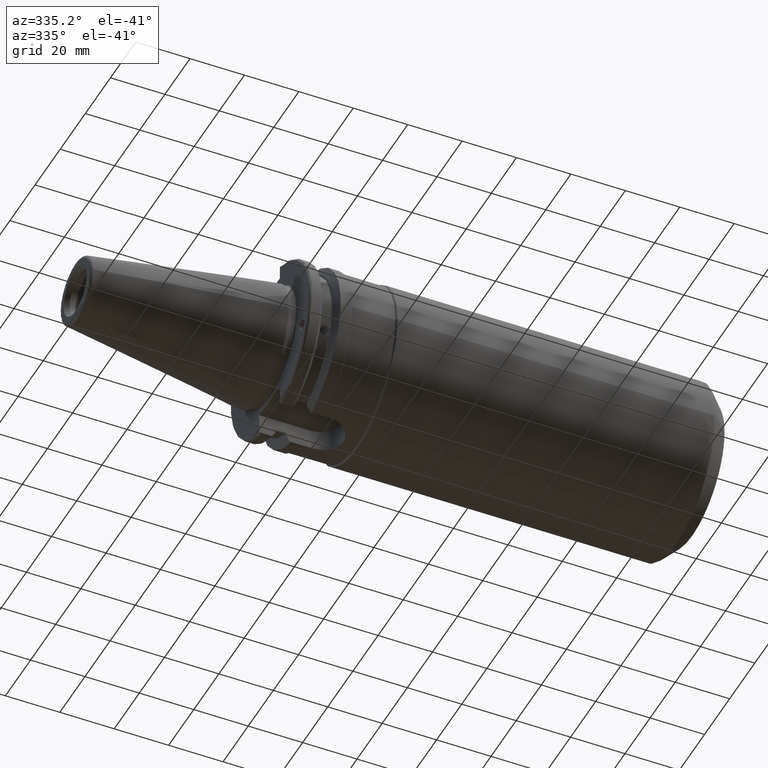
[diagram: clean part render]
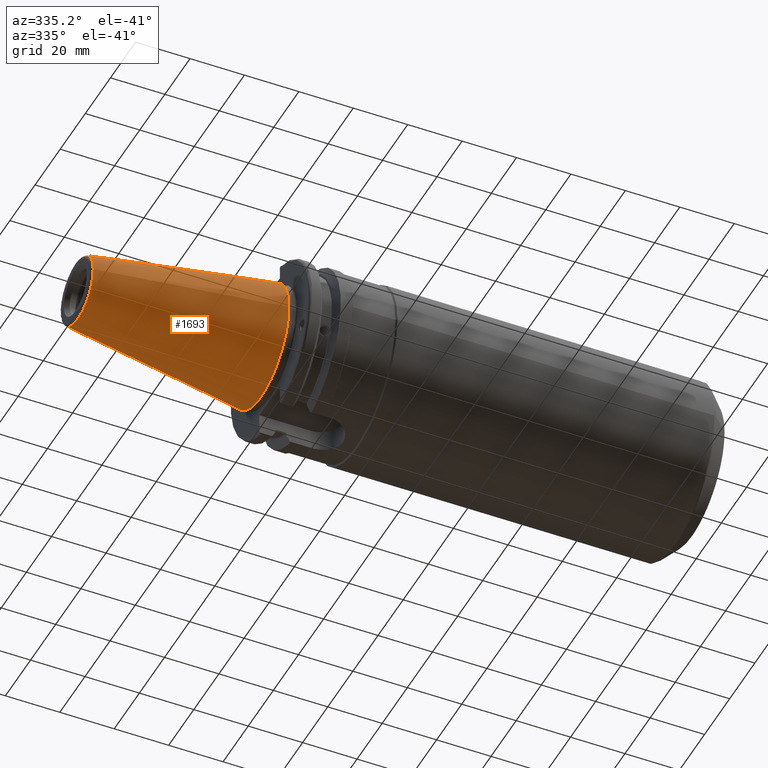
[diagram: same view with one face highlighted and labeled with its STEP entity id]
A machine part, auxiliary view. The second image highlights one B-rep face of the part: STEP entity #1693.
In plain terms, the highlighted conical surface has half-angle 8.297 deg.
Its self-contained STEP definition (entity closure, byte-faithful):
#212=FACE_OUTER_BOUND('',#322,.T.);
#322=EDGE_LOOP('',(#1468,#1469,#1470,#1471,#1472));
#467=CIRCLE('',#1893,12.3966635780937);
#468=CIRCLE('',#1894,12.3966635780937);
#472=CIRCLE('',#1900,22.225);
#556=LINE('',#3443,#646);
#646=VECTOR('',#2329,17.2484375);
#821=VERTEX_POINT('',#3430);
#822=VERTEX_POINT('',#3431);
#825=VERTEX_POINT('',#3441);
#1055=EDGE_CURVE('',#821,#822,#467,.T.);
#1056=EDGE_CURVE('',#822,#821,#468,.T.);
#1060=EDGE_CURVE('',#825,#825,#472,.T.);
#1061=EDGE_CURVE('',#825,#822,#556,.T.);
#1468=ORIENTED_EDGE('',*,*,#1060,.F.);
#1469=ORIENTED_EDGE('',*,*,#1061,.T.);
#1470=ORIENTED_EDGE('',*,*,#1055,.F.);
#1471=ORIENTED_EDGE('',*,*,#1056,.F.);
#1472=ORIENTED_EDGE('',*,*,#1061,.F.);
#1620=CONICAL_SURFACE('',#1899,17.2484375,0.144812498238939);
#1693=ADVANCED_FACE('',(#212),#1620,.T.);
#1893=AXIS2_PLACEMENT_3D('',#3432,#2313,#2314);
#1894=AXIS2_PLACEMENT_3D('',#3433,#2315,#2316);
#1899=AXIS2_PLACEMENT_3D('',#3440,#2325,#2326);
#1900=AXIS2_PLACEMENT_3D('',#3442,#2327,#2328);
#2313=DIRECTION('center_axis',(-1.,0.,0.));
#2314=DIRECTION('ref_axis',(0.,-1.,3.06161699786838E-17));
#2315=DIRECTION('center_axis',(-1.,0.,0.));
#2316=DIRECTION('ref_axis',(0.,-1.,3.06161699786838E-17));
#2325=DIRECTION('center_axis',(1.,0.,0.));
#2326=DIRECTION('ref_axis',(0.,1.,0.));
#2327=DIRECTION('center_axis',(1.,0.,0.));
#2328=DIRECTION('ref_axis',(0.,0.,-1.));
#2329=DIRECTION('',(-0.989532981063282,0.144306893071729,1.76724974695192E-17));
#3430=CARTESIAN_POINT('',(-67.3943068930717,-1.5181534371019E-15,12.3966635780937));
#3431=CARTESIAN_POINT('',(-67.3943068930718,-12.3966635780937,-1.5181534371019E-15));
#3432=CARTESIAN_POINT('Origin',(-67.3943068930717,0.,-1.89769179637738E-15));
#3433=CARTESIAN_POINT('Origin',(-67.3943068930717,0.,-1.89769179637738E-15));
#3440=CARTESIAN_POINT('Origin',(-34.125,0.,0.));
#3441=CARTESIAN_POINT('',(0.,-22.225,-2.72177751110499E-15));
#3442=CARTESIAN_POINT('Origin',(0.,0.,0.));
#3443=CARTESIAN_POINT('',(-34.125,-17.2484375,-2.11232437746682E-15));